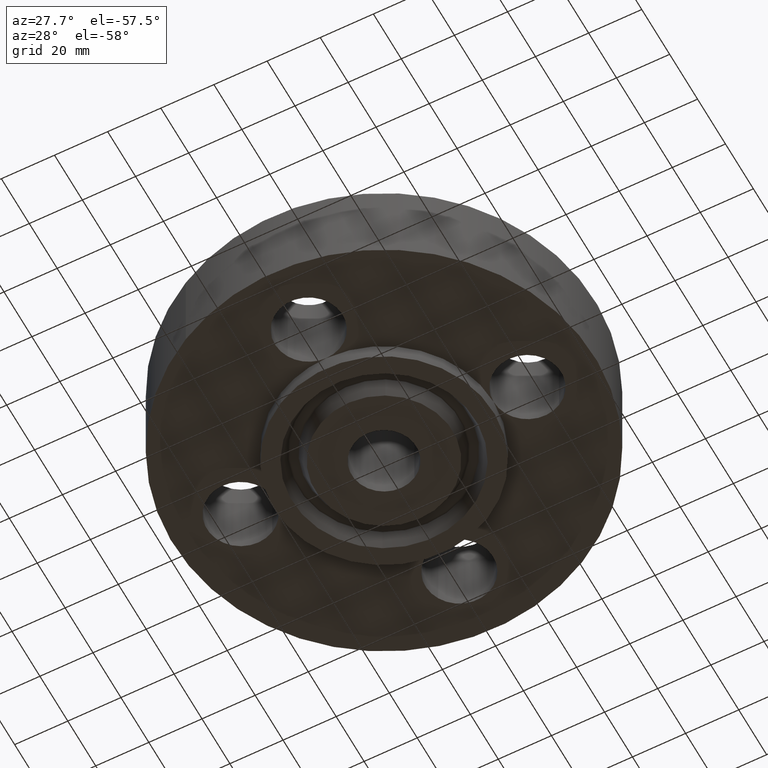
[diagram: clean part render]
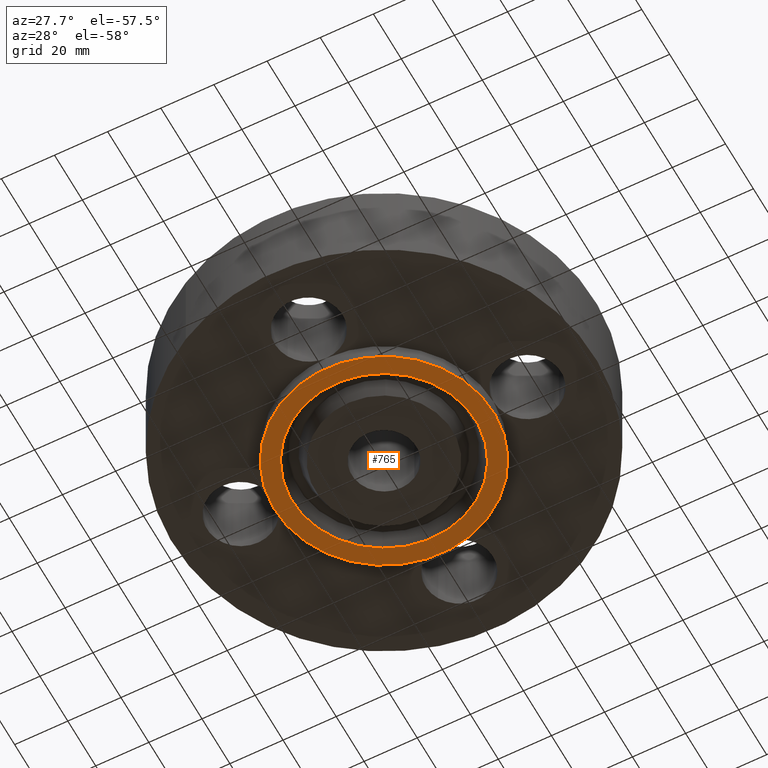
[diagram: same view with one face highlighted and labeled with its STEP entity id]
A machine part, auxiliary view. The second image highlights one B-rep face of the part: STEP entity #765.
In plain terms, the highlighted planar face has unit normal (0, 0, -1).
Its self-contained STEP definition (entity closure, byte-faithful):
#439=AXIS2_PLACEMENT_3D('Circle Axis2P3D',#437,#438,$) ;
#488=AXIS2_PLACEMENT_3D('Circle Axis2P3D',#486,#487,$) ;
#741=AXIS2_PLACEMENT_3D('Plane Axis2P3D',#738,#739,#740) ;
#749=AXIS2_PLACEMENT_3D('Circle Axis2P3D',#747,#748,$) ;
#758=AXIS2_PLACEMENT_3D('Circle Axis2P3D',#756,#757,$) ;
#437=CARTESIAN_POINT('Axis2P3D Location',(0.,0.,-0.250000000001)) ;
#441=CARTESIAN_POINT('Vertex',(-0.779066500235,-1.42607166308,-0.250000000001)) ;
#443=CARTESIAN_POINT('Vertex',(0.779066500235,1.42607166308,-0.250000000001)) ;
#486=CARTESIAN_POINT('Axis2P3D Location',(0.,0.,-0.250000000001)) ;
#738=CARTESIAN_POINT('Axis2P3D Location',(0.,0.478500000002,-0.250000000001)) ;
#747=CARTESIAN_POINT('Axis2P3D Location',(1.39870617276E-016,3.49676543189E-016,-0.250000000001)) ;
#751=CARTESIAN_POINT('Vertex',(0.651779019735,-1.19307349289,-0.250000000001)) ;
#753=CARTESIAN_POINT('Vertex',(-0.651779019735,1.19307349289,-0.250000000001)) ;
#756=CARTESIAN_POINT('Axis2P3D Location',(-2.44773580232E-016,-6.2941777774E-016,-0.250000000001)) ;
#438=DIRECTION('Axis2P3D Direction',(0.,0.,-0.0393700787402)) ;
#487=DIRECTION('Axis2P3D Direction',(0.,0.,-0.0393700787402)) ;
#739=DIRECTION('Axis2P3D Direction',(0.,0.,-0.0393700787402)) ;
#740=DIRECTION('Axis2P3D XDirection',(0.0393700787402,0.,0.)) ;
#748=DIRECTION('Axis2P3D Direction',(0.,0.,-0.0393700787402)) ;
#757=DIRECTION('Axis2P3D Direction',(0.,0.,-0.0393700787402)) ;
#744=ORIENTED_EDGE('',*,*,#445,.T.) ;
#745=ORIENTED_EDGE('',*,*,#490,.T.) ;
#762=ORIENTED_EDGE('',*,*,#755,.F.) ;
#763=ORIENTED_EDGE('',*,*,#760,.F.) ;
#764=FACE_BOUND('',#761,.T.) ;
#765=ADVANCED_FACE('PartBody',(#746,#764),#742,.T.) ;
#440=CIRCLE('generated circle',#439,1.62500000001) ;
#489=CIRCLE('generated circle',#488,1.62500000001) ;
#750=CIRCLE('generated circle',#749,1.35950000001) ;
#759=CIRCLE('generated circle',#758,1.35950000001) ;
#445=EDGE_CURVE('',#442,#444,#440,.T.) ;
#490=EDGE_CURVE('',#444,#442,#489,.T.) ;
#755=EDGE_CURVE('',#752,#754,#750,.T.) ;
#760=EDGE_CURVE('',#754,#752,#759,.T.) ;
#743=EDGE_LOOP('',(#744,#745)) ;
#761=EDGE_LOOP('',(#762,#763)) ;
#746=FACE_OUTER_BOUND('',#743,.T.) ;
#742=PLANE('',#741) ;
#442=VERTEX_POINT('',#441) ;
#444=VERTEX_POINT('',#443) ;
#752=VERTEX_POINT('',#751) ;
#754=VERTEX_POINT('',#753) ;